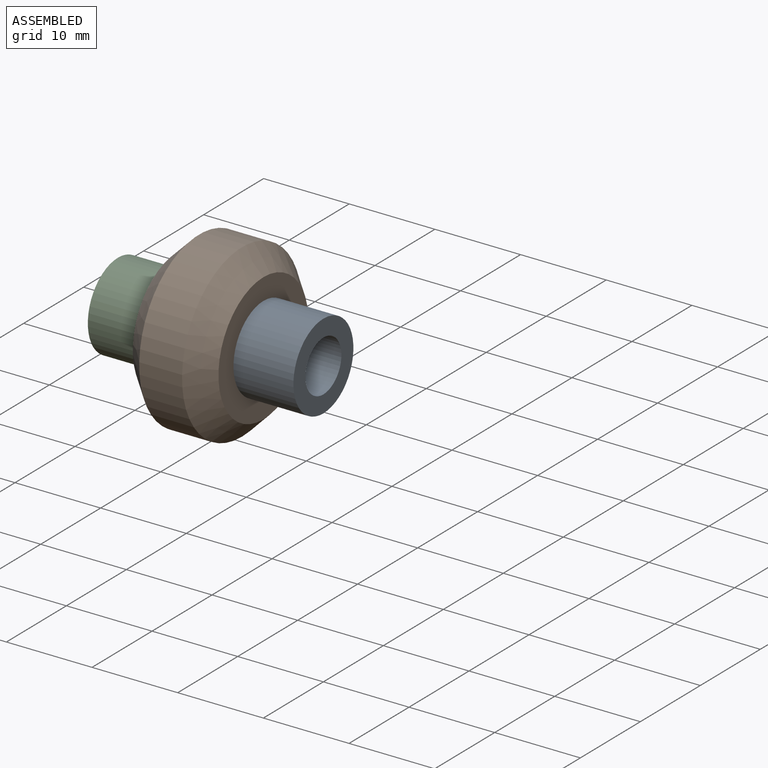
[diagram: assembled view]
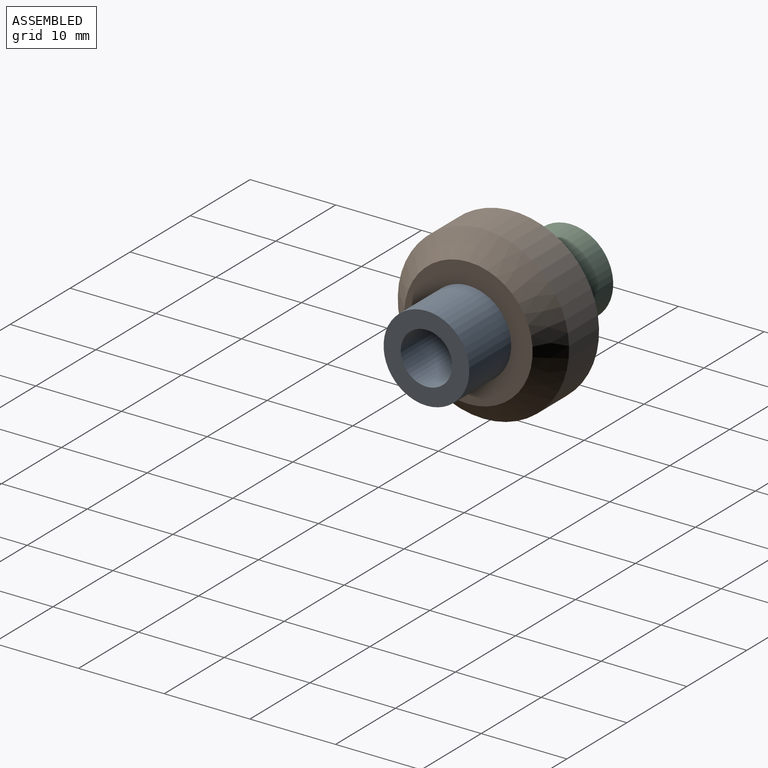
[diagram: assembled view, second angle]
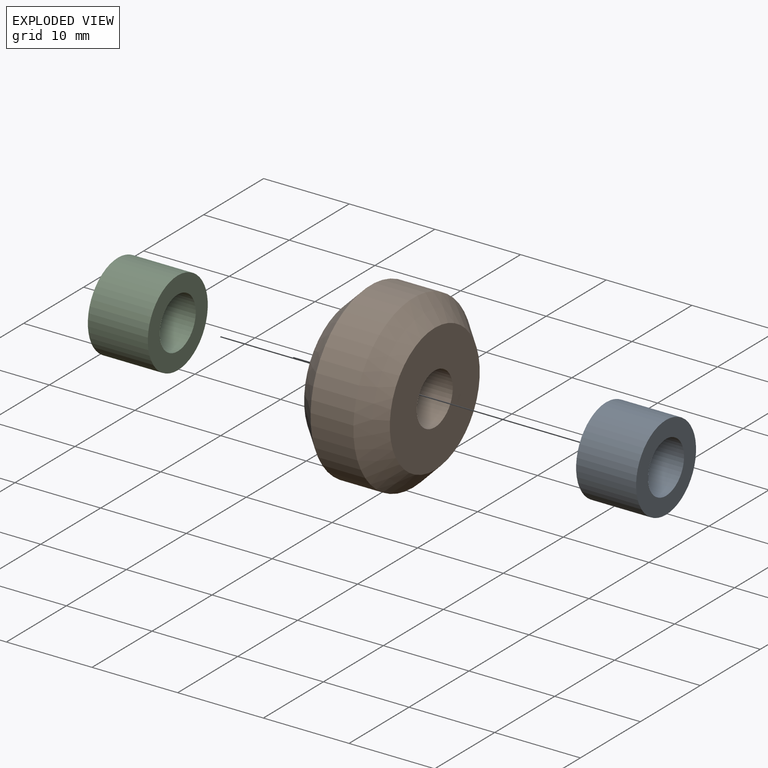
[diagram: exploded view]
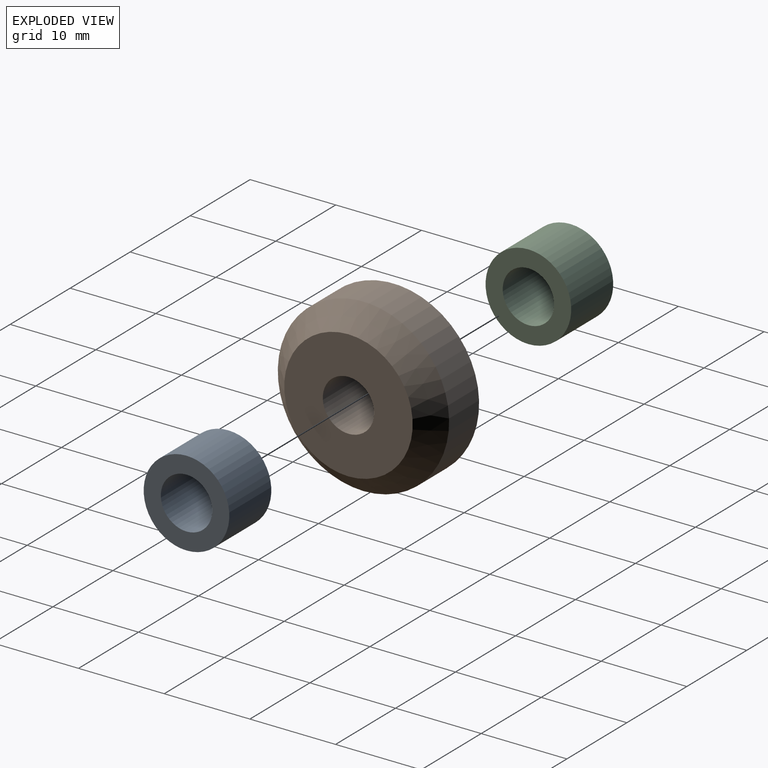
[diagram: exploded view, second angle]
ASSEMBLY  parts=3 mates=2
PART A: 4 faces, bbox 7x10x10 mm
  f0: plane 10x10mm, normal (-1,0,0), area 50.3mm2, adj f2,f3
  f1: plane 10x10mm, normal (1,0,0), area 50.3mm2, adj f2,f3
  f2: cylinder r=5mm len=10mm, axis (1,0,0), area 219.9mm2, adj f0,f1
  f3: cylinder r=3mm len=7mm, axis (1,0,0), area 131.9mm2, adj f0,f1
PART B: 6 faces, bbox 10x20x20 mm
  f0: plane 15x15mm, normal (1,0,0), area 148.4mm2, adj f1,f5
  f1: cylinder r=3mm len=10mm, axis (1,0,0), area 188.5mm2, adj f0,f2
  f2: plane 15x15mm, normal (-1,0,0), area 148.4mm2, adj f1,f3
  f3: cone r=10mm half-angle=45deg, axis (1,0,0), area 194.4mm2, adj f2,f4
  f4: cylinder r=10mm len=20mm, axis (1,0,0), area 314.2mm2, adj f3,f5
  f5: cone r=10mm half-angle=45deg, axis (-1,0,0), area 194.4mm2, adj f0,f4
PART C: same geometry as A
PLACE A at identity
PLACE B at identity
PLACE C t=(-17,0,0)mm
MATE revolute A.f2 <-> B.f1  axis (-1,0,0) through (5,-250,27.92)mm
MATE revolute C.f2 <-> B.f1  axis (1,0,0) through (-5,-250,27.92)mm
